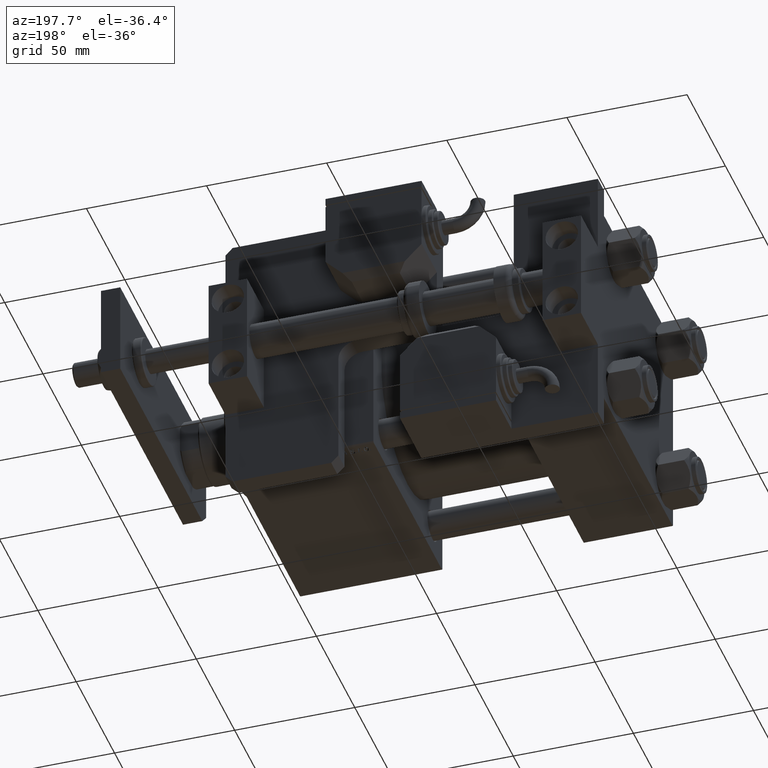
[diagram: clean part render]
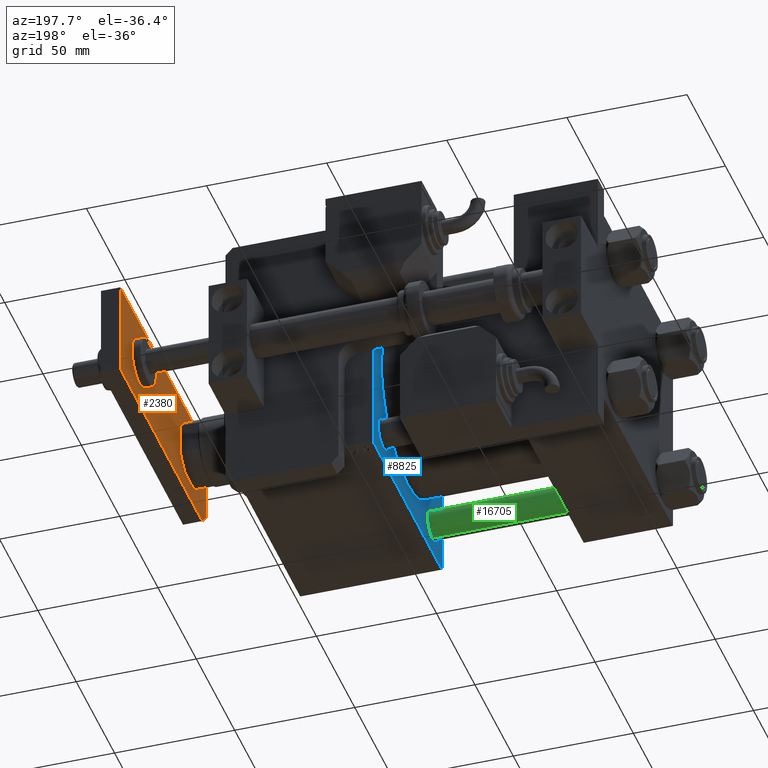
[diagram: same view with three faces highlighted in distinct colors, each labeled with its STEP entity id]
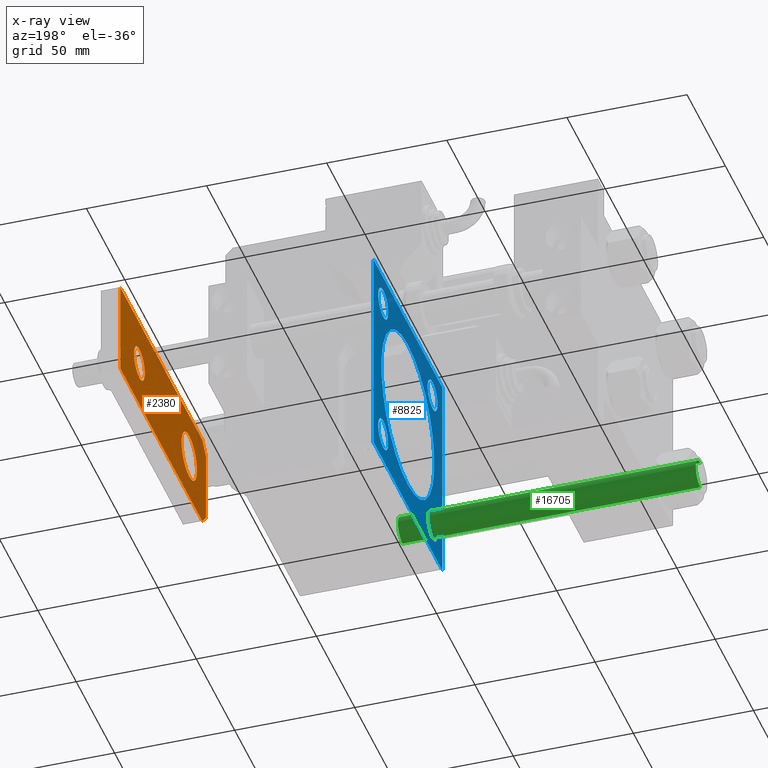
[diagram: x-ray of the same camera — body ghosted, the three highlighted faces saturated]
A machine part, auxiliary view with three faces highlighted in distinct colors.
The next image is the same camera in x-ray (body ghosted, the three faces saturated) — at least one of them is partly hidden behind the body in this view.
Their STEP definitions:

[orange] entity #2380 — the highlighted planar face has unit normal (1, 0, -0).
#154 = CARTESIAN_POINT ( 'NONE',  ( 7.000000000000004441, 87.00000000000000000, 0.000000000000000000 ) ) ;
#2354 = ORIENTED_EDGE ( 'NONE', *, *, #5087, .F. ) ;
#2380 = ADVANCED_FACE ( 'NONE', ( #11979, #4319, #34327 ), #42223, .F. ) ;
#2828 = VECTOR ( 'NONE', #36182, 1000.000000000000000 ) ;
#2831 = VECTOR ( 'NONE', #12342, 1000.000000000000000 ) ;
#3232 = CARTESIAN_POINT ( 'NONE',  ( 10.00000000000000178, 21.99999999999999289, 0.000000000000000000 ) ) ;
#3482 = DIRECTION ( 'NONE',  ( -0.000000000000000000, 0.000000000000000000, 1.000000000000000000 ) ) ;
#4152 = EDGE_CURVE ( 'NONE', #22876, #24029, #31539, .T. ) ;
#4319 = FACE_BOUND ( 'NONE', #4669, .T. ) ;
#4669 = EDGE_LOOP ( 'NONE', ( #41774, #9594 ) ) ;
#5087 = EDGE_CURVE ( 'NONE', #33819, #53638, #9982, .T. ) ;
#5641 = ORIENTED_EDGE ( 'NONE', *, *, #24046, .F. ) ;
#6178 = LINE ( 'NONE', #19204, #2828 ) ;
#6569 = CARTESIAN_POINT ( 'NONE',  ( -2.000174246416480903E-16, 87.00000000000000000, 0.000000000000000000 ) ) ;
#6760 = VERTEX_POINT ( 'NONE', #3232 ) ;
#7106 = VECTOR ( 'NONE', #31763, 1000.000000000000000 ) ;
#7269 = VECTOR ( 'NONE', #54773, 1000.000000000000000 ) ;
#7279 = LINE ( 'NONE', #33297, #7269 ) ;
#7653 = CARTESIAN_POINT ( 'NONE',  ( 0.000000000000000000, 21.99999999999999289, 0.000000000000000000 ) ) ;
#9589 = EDGE_CURVE ( 'NONE', #15894, #33819, #7279, .T. ) ;
#9594 = ORIENTED_EDGE ( 'NONE', *, *, #49016, .T. ) ;
#9982 = LINE ( 'NONE', #26957, #7106 ) ;
#11979 = FACE_OUTER_BOUND ( 'NONE', #29277, .T. ) ;
#12342 = DIRECTION ( 'NONE',  ( -0.7071067811865465735, 0.7071067811865485719, -0.000000000000000000 ) ) ;
#14229 = CARTESIAN_POINT ( 'NONE',  ( -20.00000000000001421, 5.000000000000018652, 0.000000000000000000 ) ) ;
#15236 = EDGE_LOOP ( 'NONE', ( #20978, #34449 ) ) ;
#15863 = DIRECTION ( 'NONE',  ( 1.000000000000000000, 0.000000000000000000, 0.000000000000000000 ) ) ;
#15894 = VERTEX_POINT ( 'NONE', #32794 ) ;
#17278 = AXIS2_PLACEMENT_3D ( 'NONE', #6569, #31762, #48986 ) ;
#18432 = CIRCLE ( 'NONE', #31101, 7.000000000000004441 ) ;
#19204 = CARTESIAN_POINT ( 'NONE',  ( -20.00000000000000355, 112.0000000000000000, 0.000000000000000000 ) ) ;
#20231 = DIRECTION ( 'NONE',  ( 1.000000000000000000, 0.000000000000000000, 0.000000000000000000 ) ) ;
#20978 = ORIENTED_EDGE ( 'NONE', *, *, #41965, .T. ) ;
#22219 = EDGE_CURVE ( 'NONE', #26323, #47387, #41624, .T. ) ;
#22836 = CARTESIAN_POINT ( 'NONE',  ( 0.000000000000000000, 21.99999999999999289, 0.000000000000000000 ) ) ;
#22876 = VERTEX_POINT ( 'NONE', #34974 ) ;
#23168 = CARTESIAN_POINT ( 'NONE',  ( 15.00000000000001066, 0.000000000000000000, 0.000000000000000000 ) ) ;
#24029 = VERTEX_POINT ( 'NONE', #23168 ) ;
#24046 = EDGE_CURVE ( 'NONE', #53638, #55513, #6178, .T. ) ;
#26233 = CIRCLE ( 'NONE', #33445, 10.00000000000000178 ) ;
#26323 = VERTEX_POINT ( 'NONE', #44239 ) ;
#26643 = DIRECTION ( 'NONE',  ( -0.7071067811865485719, -0.7071067811865465735, -0.000000000000000000 ) ) ;
#26917 = CARTESIAN_POINT ( 'NONE',  ( 20.00000000000001421, 4.999999999999990230, 0.000000000000000000 ) ) ;
#26957 = CARTESIAN_POINT ( 'NONE',  ( 19.99999999999999645, 112.0000000000000000, 0.000000000000000000 ) ) ;
#27517 = CARTESIAN_POINT ( 'NONE',  ( -10.00000000000000178, 21.99999999999999289, 0.000000000000000000 ) ) ;
#29277 = EDGE_LOOP ( 'NONE', ( #34690, #42115, #5641, #2354, #49013, #44860 ) ) ;
#29592 = LINE ( 'NONE', #33837, #2831 ) ;
#30214 = DIRECTION ( 'NONE',  ( 0.000000000000000000, 0.000000000000000000, 1.000000000000000000 ) ) ;
#31101 = AXIS2_PLACEMENT_3D ( 'NONE', #38038, #33510, #20231 ) ;
#31457 = VECTOR ( 'NONE', #31821, 1000.000000000000000 ) ;
#31539 = LINE ( 'NONE', #48481, #31457 ) ;
#31762 = DIRECTION ( 'NONE',  ( 0.000000000000000000, 0.000000000000000000, 1.000000000000000000 ) ) ;
#31763 = DIRECTION ( 'NONE',  ( -1.000000000000000000, 0.000000000000000000, 0.000000000000000000 ) ) ;
#31821 = DIRECTION ( 'NONE',  ( 1.000000000000000000, 0.000000000000000000, 0.000000000000000000 ) ) ;
#31952 = VERTEX_POINT ( 'NONE', #27517 ) ;
#32053 = CARTESIAN_POINT ( 'NONE',  ( -20.00000000000000355, 112.0000000000000000, 0.000000000000000000 ) ) ;
#32429 = AXIS2_PLACEMENT_3D ( 'NONE', #33758, #3482, #38281 ) ;
#32794 = CARTESIAN_POINT ( 'NONE',  ( 20.00000000000001421, 4.999999999999989342, 0.000000000000000000 ) ) ;
#33297 = CARTESIAN_POINT ( 'NONE',  ( 20.00000000000001421, 0.000000000000000000, 0.000000000000000000 ) ) ;
#33445 = AXIS2_PLACEMENT_3D ( 'NONE', #22836, #30214, #39237 ) ;
#33510 = DIRECTION ( 'NONE',  ( 0.000000000000000000, 0.000000000000000000, 1.000000000000000000 ) ) ;
#33758 = CARTESIAN_POINT ( 'NONE',  ( 0.000000000000000000, 0.000000000000000000, 0.000000000000000000 ) ) ;
#33819 = VERTEX_POINT ( 'NONE', #53127 ) ;
#33837 = CARTESIAN_POINT ( 'NONE',  ( -15.00000000000001066, 0.000000000000000000, 0.000000000000000000 ) ) ;
#33844 = CIRCLE ( 'NONE', #55496, 10.00000000000000178 ) ;
#34327 = FACE_BOUND ( 'NONE', #15236, .T. ) ;
#34449 = ORIENTED_EDGE ( 'NONE', *, *, #54789, .T. ) ;
#34690 = ORIENTED_EDGE ( 'NONE', *, *, #4152, .F. ) ;
#34974 = CARTESIAN_POINT ( 'NONE',  ( -15.00000000000001066, 0.000000000000000000, 0.000000000000000000 ) ) ;
#36182 = DIRECTION ( 'NONE',  ( -9.293161478447180511E-17, -1.000000000000000000, 0.000000000000000000 ) ) ;
#38038 = CARTESIAN_POINT ( 'NONE',  ( -2.000174246416480903E-16, 87.00000000000000000, 0.000000000000000000 ) ) ;
#38281 = DIRECTION ( 'NONE',  ( 1.000000000000000000, 0.000000000000000000, 0.000000000000000000 ) ) ;
#39093 = LINE ( 'NONE', #26917, #51642 ) ;
#39237 = DIRECTION ( 'NONE',  ( 1.000000000000000000, 0.000000000000000000, 0.000000000000000000 ) ) ;
#41624 = CIRCLE ( 'NONE', #17278, 7.000000000000004441 ) ;
#41774 = ORIENTED_EDGE ( 'NONE', *, *, #22219, .T. ) ;
#41965 = EDGE_CURVE ( 'NONE', #31952, #6760, #26233, .T. ) ;
#42115 = ORIENTED_EDGE ( 'NONE', *, *, #43125, .T. ) ;
#42223 = PLANE ( 'NONE',  #32429 ) ;
#43125 = EDGE_CURVE ( 'NONE', #22876, #55513, #29592, .T. ) ;
#44123 = EDGE_CURVE ( 'NONE', #15894, #24029, #39093, .T. ) ;
#44239 = CARTESIAN_POINT ( 'NONE',  ( -7.000000000000004441, 87.00000000000000000, 0.000000000000000000 ) ) ;
#44860 = ORIENTED_EDGE ( 'NONE', *, *, #44123, .T. ) ;
#47387 = VERTEX_POINT ( 'NONE', #154 ) ;
#48481 = CARTESIAN_POINT ( 'NONE',  ( -20.00000000000001421, 0.000000000000000000, 0.000000000000000000 ) ) ;
#48986 = DIRECTION ( 'NONE',  ( 1.000000000000000000, 0.000000000000000000, 0.000000000000000000 ) ) ;
#49013 = ORIENTED_EDGE ( 'NONE', *, *, #9589, .F. ) ;
#49016 = EDGE_CURVE ( 'NONE', #47387, #26323, #18432, .T. ) ;
#51642 = VECTOR ( 'NONE', #26643, 1000.000000000000000 ) ;
#53127 = CARTESIAN_POINT ( 'NONE',  ( 19.99999999999999645, 112.0000000000000000, 0.000000000000000000 ) ) ;
#53638 = VERTEX_POINT ( 'NONE', #32053 ) ;
#54589 = DIRECTION ( 'NONE',  ( 0.000000000000000000, 0.000000000000000000, 1.000000000000000000 ) ) ;
#54773 = DIRECTION ( 'NONE',  ( -1.548860246407863583E-16, 1.000000000000000000, 0.000000000000000000 ) ) ;
#54789 = EDGE_CURVE ( 'NONE', #6760, #31952, #33844, .T. ) ;
#55496 = AXIS2_PLACEMENT_3D ( 'NONE', #7653, #54589, #15863 ) ;
#55513 = VERTEX_POINT ( 'NONE', #14229 ) ;

[blue] entity #8825 — the highlighted planar face has unit normal (-1, 0, 0).
#252 = DIRECTION ( 'NONE',  ( 0.000000000000000000, 0.000000000000000000, -1.000000000000000000 ) ) ;
#356 = VERTEX_POINT ( 'NONE', #16032 ) ;
#414 = ORIENTED_EDGE ( 'NONE', *, *, #51641, .T. ) ;
#779 = CARTESIAN_POINT ( 'NONE',  ( 96.00000000000000000, 32.14999999999999147, 25.64999999999998437 ) ) ;
#1247 = DIRECTION ( 'NONE',  ( 0.000000000000000000, 0.000000000000000000, 1.000000000000000000 ) ) ;
#1474 = VECTOR ( 'NONE', #32712, 1000.000000000000000 ) ;
#1688 = DIRECTION ( 'NONE',  ( 0.000000000000000000, 0.000000000000000000, 1.000000000000000000 ) ) ;
#1890 = CIRCLE ( 'NONE', #6423, 6.500000000000019540 ) ;
#2535 = DIRECTION ( 'NONE',  ( 1.000000000000000000, 0.000000000000000000, 0.000000000000000000 ) ) ;
#2788 = AXIS2_PLACEMENT_3D ( 'NONE', #43558, #30562, #47787 ) ;
#3099 = CARTESIAN_POINT ( 'NONE',  ( 96.00000000000000000, 32.14999999999999147, -38.65000000000001990 ) ) ;
#3269 = VERTEX_POINT ( 'NONE', #22159 ) ;
#3353 = DIRECTION ( 'NONE',  ( 0.000000000000000000, -1.000000000000000000, -1.541976423090495387E-16 ) ) ;
#3540 = ORIENTED_EDGE ( 'NONE', *, *, #42611, .T. ) ;
#4128 = DIRECTION ( 'NONE',  ( 0.000000000000000000, 0.000000000000000000, 1.000000000000000000 ) ) ;
#4375 = AXIS2_PLACEMENT_3D ( 'NONE', #44663, #31949, #40422 ) ;
#4453 = VECTOR ( 'NONE', #3353, 1000.000000000000000 ) ;
#4563 = CIRCLE ( 'NONE', #8216, 34.50000000000000000 ) ;
#5254 = CARTESIAN_POINT ( 'NONE',  ( 96.00000000000000000, 45.00000000000000000, 44.50000000000004263 ) ) ;
#5363 = DIRECTION ( 'NONE',  ( 1.000000000000000000, -0.000000000000000000, 0.000000000000000000 ) ) ;
#5433 = EDGE_CURVE ( 'NONE', #3269, #17139, #54970, .T. ) ;
#5750 = CARTESIAN_POINT ( 'NONE',  ( 96.00000000000000000, 32.14999999999999147, -25.64999999999997726 ) ) ;
#6423 = AXIS2_PLACEMENT_3D ( 'NONE', #45432, #41754, #49948 ) ;
#6814 = VERTEX_POINT ( 'NONE', #3099 ) ;
#6889 = EDGE_CURVE ( 'NONE', #10723, #18112, #13534, .T. ) ;
#7608 = LINE ( 'NONE', #42099, #4453 ) ;
#8216 = AXIS2_PLACEMENT_3D ( 'NONE', #42396, #20928, #38171 ) ;
#8226 = CARTESIAN_POINT ( 'NONE',  ( 96.00000000000000000, 0.000000000000000000, 0.000000000000000000 ) ) ;
#8394 = CARTESIAN_POINT ( 'NONE',  ( 96.00000000000000000, -32.14999999999997726, -32.15000000000000568 ) ) ;
#8501 = LINE ( 'NONE', #47492, #19429 ) ;
#8825 = ADVANCED_FACE ( 'NONE', ( #33387, #45820, #16431, #46378, #33116, #54594 ), #16146, .T. ) ;
#9259 = EDGE_CURVE ( 'NONE', #18112, #10723, #4563, .T. ) ;
#9296 = DIRECTION ( 'NONE',  ( 0.000000000000000000, -1.000000000000000000, -1.541976423090495387E-16 ) ) ;
#9611 = ORIENTED_EDGE ( 'NONE', *, *, #6889, .T. ) ;
#10723 = VERTEX_POINT ( 'NONE', #37208 ) ;
#11191 = ORIENTED_EDGE ( 'NONE', *, *, #15736, .T. ) ;
#11485 = VERTEX_POINT ( 'NONE', #5254 ) ;
#12827 = VERTEX_POINT ( 'NONE', #25169 ) ;
#12892 = ORIENTED_EDGE ( 'NONE', *, *, #15943, .F. ) ;
#13534 = CIRCLE ( 'NONE', #18064, 34.50000000000000000 ) ;
#14025 = DIRECTION ( 'NONE',  ( 1.000000000000000000, -0.000000000000000000, 0.000000000000000000 ) ) ;
#14195 = ORIENTED_EDGE ( 'NONE', *, *, #32126, .T. ) ;
#14653 = EDGE_CURVE ( 'NONE', #17139, #3269, #28771, .T. ) ;
#15198 = DIRECTION ( 'NONE',  ( -0.000000000000000000, -0.7071067811865474617, -0.7071067811865474617 ) ) ;
#15736 = EDGE_CURVE ( 'NONE', #28470, #20969, #51400, .T. ) ;
#15943 = EDGE_CURVE ( 'NONE', #42004, #12827, #7608, .T. ) ;
#16025 = ORIENTED_EDGE ( 'NONE', *, *, #30728, .T. ) ;
#16032 = CARTESIAN_POINT ( 'NONE',  ( 96.00000000000000000, -45.00000000000000000, -44.50000000000002842 ) ) ;
#16146 = PLANE ( 'NONE',  #29817 ) ;
#16407 = DIRECTION ( 'NONE',  ( 0.000000000000000000, -0.7071067811865474617, 0.7071067811865474617 ) ) ;
#16431 = FACE_BOUND ( 'NONE', #31724, .T. ) ;
#17139 = VERTEX_POINT ( 'NONE', #779 ) ;
#17196 = CARTESIAN_POINT ( 'NONE',  ( 96.00000000000000000, -2.602085213965210642E-15, 34.50000000000000000 ) ) ;
#18064 = AXIS2_PLACEMENT_3D ( 'NONE', #41282, #2535, #19810 ) ;
#18112 = VERTEX_POINT ( 'NONE', #17196 ) ;
#19362 = DIRECTION ( 'NONE',  ( 1.000000000000000000, -0.000000000000000000, 0.000000000000000000 ) ) ;
#19429 = VECTOR ( 'NONE', #252, 1000.000000000000000 ) ;
#19810 = DIRECTION ( 'NONE',  ( 0.000000000000000000, 0.000000000000000000, -1.000000000000000000 ) ) ;
#20928 = DIRECTION ( 'NONE',  ( 1.000000000000000000, 0.000000000000000000, 0.000000000000000000 ) ) ;
#20969 = VERTEX_POINT ( 'NONE', #32100 ) ;
#21187 = ORIENTED_EDGE ( 'NONE', *, *, #38395, .T. ) ;
#21641 = ORIENTED_EDGE ( 'NONE', *, *, #54014, .F. ) ;
#22101 = VECTOR ( 'NONE', #16407, 1000.000000000000114 ) ;
#22159 = CARTESIAN_POINT ( 'NONE',  ( 96.00000000000000000, 32.14999999999999147, 38.65000000000001279 ) ) ;
#22758 = ORIENTED_EDGE ( 'NONE', *, *, #14653, .T. ) ;
#23719 = AXIS2_PLACEMENT_3D ( 'NONE', #31527, #19362, #1247 ) ;
#24529 = CARTESIAN_POINT ( 'NONE',  ( 96.00000000000000000, 44.74999999999999289, -44.74999999999999289 ) ) ;
#24799 = CIRCLE ( 'NONE', #37431, 6.500000000000019540 ) ;
#24809 = LINE ( 'NONE', #24529, #30590 ) ;
#25169 = CARTESIAN_POINT ( 'NONE',  ( 96.00000000000000000, -44.50000000000000000, 45.00000000000000000 ) ) ;
#25407 = VERTEX_POINT ( 'NONE', #31519 ) ;
#25650 = DIRECTION ( 'NONE',  ( 1.000000000000000000, -0.000000000000000000, 0.000000000000000000 ) ) ;
#25984 = EDGE_LOOP ( 'NONE', ( #11191, #43761 ) ) ;
#26693 = CIRCLE ( 'NONE', #47432, 6.500000000000019540 ) ;
#26795 = CARTESIAN_POINT ( 'NONE',  ( 96.00000000000000000, 44.50000000000002842, 45.00000000000001421 ) ) ;
#27211 = ORIENTED_EDGE ( 'NONE', *, *, #5433, .T. ) ;
#27231 = EDGE_LOOP ( 'NONE', ( #16025, #51094 ) ) ;
#27414 = VECTOR ( 'NONE', #9296, 1000.000000000000000 ) ;
#27481 = EDGE_LOOP ( 'NONE', ( #14195, #33536, #21641, #43215, #12892, #414, #21187, #45708 ) ) ;
#27919 = AXIS2_PLACEMENT_3D ( 'NONE', #44106, #5363, #40712 ) ;
#27929 = CARTESIAN_POINT ( 'NONE',  ( 96.00000000000000000, -44.75000000000001421, 44.75000000000001421 ) ) ;
#28177 = EDGE_LOOP ( 'NONE', ( #27211, #22758 ) ) ;
#28470 = VERTEX_POINT ( 'NONE', #28841 ) ;
#28771 = CIRCLE ( 'NONE', #4375, 6.500000000000012434 ) ;
#28841 = CARTESIAN_POINT ( 'NONE',  ( 96.00000000000000000, -32.14999999999997726, 38.65000000000002700 ) ) ;
#29473 = CARTESIAN_POINT ( 'NONE',  ( 96.00000000000000000, 45.00000000000000000, -44.49999999999995737 ) ) ;
#29817 = AXIS2_PLACEMENT_3D ( 'NONE', #8226, #55419, #37356 ) ;
#30562 = DIRECTION ( 'NONE',  ( 1.000000000000000000, -0.000000000000000000, 0.000000000000000000 ) ) ;
#30590 = VECTOR ( 'NONE', #15198, 1000.000000000000114 ) ;
#30614 = AXIS2_PLACEMENT_3D ( 'NONE', #52894, #53446, #1688 ) ;
#30728 = EDGE_CURVE ( 'NONE', #49720, #54382, #24799, .T. ) ;
#31167 = ORIENTED_EDGE ( 'NONE', *, *, #55170, .T. ) ;
#31519 = CARTESIAN_POINT ( 'NONE',  ( 96.00000000000000000, -45.00000000000000000, 44.50000000000002842 ) ) ;
#31527 = CARTESIAN_POINT ( 'NONE',  ( 96.00000000000000000, -32.14999999999997726, -32.15000000000000568 ) ) ;
#31724 = EDGE_LOOP ( 'NONE', ( #31167, #3540 ) ) ;
#31949 = DIRECTION ( 'NONE',  ( 1.000000000000000000, -0.000000000000000000, 0.000000000000000000 ) ) ;
#32100 = CARTESIAN_POINT ( 'NONE',  ( 96.00000000000000000, -32.14999999999997726, 25.64999999999998437 ) ) ;
#32126 = EDGE_CURVE ( 'NONE', #47242, #44432, #39003, .T. ) ;
#32133 = CARTESIAN_POINT ( 'NONE',  ( 96.00000000000000000, -32.14999999999997726, -38.65000000000003411 ) ) ;
#32261 = DIRECTION ( 'NONE',  ( 0.000000000000000000, 0.7071067811865474617, -0.7071067811865474617 ) ) ;
#32712 = DIRECTION ( 'NONE',  ( 0.000000000000000000, 0.000000000000000000, -1.000000000000000000 ) ) ;
#33116 = FACE_BOUND ( 'NONE', #47356, .T. ) ;
#33387 = FACE_BOUND ( 'NONE', #25984, .T. ) ;
#33536 = ORIENTED_EDGE ( 'NONE', *, *, #53135, .T. ) ;
#36131 = ORIENTED_EDGE ( 'NONE', *, *, #9259, .T. ) ;
#36518 = LINE ( 'NONE', #53737, #53729 ) ;
#37208 = CARTESIAN_POINT ( 'NONE',  ( 96.00000000000000000, 1.622946243093158675E-15, -34.50000000000000000 ) ) ;
#37356 = DIRECTION ( 'NONE',  ( -0.000000000000000000, 0.000000000000000000, 1.000000000000000000 ) ) ;
#37431 = AXIS2_PLACEMENT_3D ( 'NONE', #8394, #25650, #4128 ) ;
#38171 = DIRECTION ( 'NONE',  ( 0.000000000000000000, 0.000000000000000000, -1.000000000000000000 ) ) ;
#38352 = LINE ( 'NONE', #45696, #1474 ) ;
#38395 = EDGE_CURVE ( 'NONE', #11485, #55724, #38352, .T. ) ;
#39003 = LINE ( 'NONE', #48016, #27414 ) ;
#40422 = DIRECTION ( 'NONE',  ( 0.000000000000000000, 0.000000000000000000, 1.000000000000000000 ) ) ;
#40712 = DIRECTION ( 'NONE',  ( 0.000000000000000000, 0.000000000000000000, 1.000000000000000000 ) ) ;
#40757 = EDGE_CURVE ( 'NONE', #55724, #47242, #24809, .T. ) ;
#41278 = LINE ( 'NONE', #55118, #22101 ) ;
#41282 = CARTESIAN_POINT ( 'NONE',  ( 96.00000000000000000, -2.602085213965210642E-15, 0.000000000000000000 ) ) ;
#41303 = CARTESIAN_POINT ( 'NONE',  ( 96.00000000000000000, -44.50000000000002842, -45.00000000000000000 ) ) ;
#41754 = DIRECTION ( 'NONE',  ( 1.000000000000000000, -0.000000000000000000, 0.000000000000000000 ) ) ;
#42004 = VERTEX_POINT ( 'NONE', #26795 ) ;
#42099 = CARTESIAN_POINT ( 'NONE',  ( 96.00000000000000000, 45.00000000000000000, 45.00000000000001421 ) ) ;
#42312 = CARTESIAN_POINT ( 'NONE',  ( 96.00000000000000000, 44.50000000000000000, -44.99999999999998579 ) ) ;
#42396 = CARTESIAN_POINT ( 'NONE',  ( 96.00000000000000000, -2.602085213965210642E-15, 0.000000000000000000 ) ) ;
#42611 = EDGE_CURVE ( 'NONE', #6814, #54712, #50670, .T. ) ;
#43215 = ORIENTED_EDGE ( 'NONE', *, *, #47176, .T. ) ;
#43558 = CARTESIAN_POINT ( 'NONE',  ( 96.00000000000000000, 32.14999999999999147, -32.14999999999999858 ) ) ;
#43761 = ORIENTED_EDGE ( 'NONE', *, *, #43943, .T. ) ;
#43943 = EDGE_CURVE ( 'NONE', #20969, #28470, #1890, .T. ) ;
#44106 = CARTESIAN_POINT ( 'NONE',  ( 96.00000000000000000, -32.14999999999997726, 32.15000000000000568 ) ) ;
#44432 = VERTEX_POINT ( 'NONE', #41303 ) ;
#44663 = CARTESIAN_POINT ( 'NONE',  ( 96.00000000000000000, 32.14999999999999147, 32.14999999999999858 ) ) ;
#45432 = CARTESIAN_POINT ( 'NONE',  ( 96.00000000000000000, -32.14999999999997726, 32.15000000000000568 ) ) ;
#45696 = CARTESIAN_POINT ( 'NONE',  ( 96.00000000000000000, 45.00000000000000000, 45.00000000000001421 ) ) ;
#45708 = ORIENTED_EDGE ( 'NONE', *, *, #40757, .T. ) ;
#45820 = FACE_BOUND ( 'NONE', #28177, .T. ) ;
#46309 = EDGE_CURVE ( 'NONE', #54382, #49720, #48068, .T. ) ;
#46378 = FACE_BOUND ( 'NONE', #27231, .T. ) ;
#47176 = EDGE_CURVE ( 'NONE', #25407, #12827, #53366, .T. ) ;
#47242 = VERTEX_POINT ( 'NONE', #42312 ) ;
#47356 = EDGE_LOOP ( 'NONE', ( #36131, #9611 ) ) ;
#47432 = AXIS2_PLACEMENT_3D ( 'NONE', #52745, #14025, #48216 ) ;
#47492 = CARTESIAN_POINT ( 'NONE',  ( 96.00000000000000000, -45.00000000000000000, 45.00000000000000000 ) ) ;
#47787 = DIRECTION ( 'NONE',  ( 0.000000000000000000, 0.000000000000000000, 1.000000000000000000 ) ) ;
#48016 = CARTESIAN_POINT ( 'NONE',  ( 96.00000000000000000, 45.00000000000000000, -44.99999999999998579 ) ) ;
#48068 = CIRCLE ( 'NONE', #23719, 6.500000000000019540 ) ;
#48216 = DIRECTION ( 'NONE',  ( 0.000000000000000000, 0.000000000000000000, 1.000000000000000000 ) ) ;
#48283 = CARTESIAN_POINT ( 'NONE',  ( 96.00000000000000000, -32.14999999999997726, -25.64999999999998437 ) ) ;
#48840 = DIRECTION ( 'NONE',  ( -0.000000000000000000, 0.7071067811865474617, 0.7071067811865474617 ) ) ;
#49720 = VERTEX_POINT ( 'NONE', #48283 ) ;
#49948 = DIRECTION ( 'NONE',  ( 0.000000000000000000, 0.000000000000000000, 1.000000000000000000 ) ) ;
#50670 = CIRCLE ( 'NONE', #2788, 6.500000000000019540 ) ;
#51094 = ORIENTED_EDGE ( 'NONE', *, *, #46309, .T. ) ;
#51400 = CIRCLE ( 'NONE', #27919, 6.500000000000019540 ) ;
#51641 = EDGE_CURVE ( 'NONE', #42004, #11485, #36518, .T. ) ;
#52634 = VECTOR ( 'NONE', #48840, 1000.000000000000114 ) ;
#52745 = CARTESIAN_POINT ( 'NONE',  ( 96.00000000000000000, 32.14999999999999147, -32.14999999999999858 ) ) ;
#52894 = CARTESIAN_POINT ( 'NONE',  ( 96.00000000000000000, 32.14999999999999147, 32.14999999999999858 ) ) ;
#53135 = EDGE_CURVE ( 'NONE', #44432, #356, #41278, .T. ) ;
#53366 = LINE ( 'NONE', #27929, #52634 ) ;
#53446 = DIRECTION ( 'NONE',  ( 1.000000000000000000, -0.000000000000000000, 0.000000000000000000 ) ) ;
#53729 = VECTOR ( 'NONE', #32261, 1000.000000000000114 ) ;
#53737 = CARTESIAN_POINT ( 'NONE',  ( 96.00000000000000000, 44.75000000000001421, 44.75000000000001421 ) ) ;
#54014 = EDGE_CURVE ( 'NONE', #25407, #356, #8501, .T. ) ;
#54382 = VERTEX_POINT ( 'NONE', #32133 ) ;
#54594 = FACE_OUTER_BOUND ( 'NONE', #27481, .T. ) ;
#54712 = VERTEX_POINT ( 'NONE', #5750 ) ;
#54970 = CIRCLE ( 'NONE', #30614, 6.500000000000012434 ) ;
#55118 = CARTESIAN_POINT ( 'NONE',  ( 96.00000000000000000, -44.75000000000002132, -44.75000000000002132 ) ) ;
#55170 = EDGE_CURVE ( 'NONE', #54712, #6814, #26693, .T. ) ;
#55419 = DIRECTION ( 'NONE',  ( -1.000000000000000000, 0.000000000000000000, -0.000000000000000000 ) ) ;
#55724 = VERTEX_POINT ( 'NONE', #29473 ) ;

[green] entity #16705 — the highlighted cylindrical surface (edge-blend (fillet) strip) has radius 6 mm, axis along (-1, 0, -0).
#24 = FACE_OUTER_BOUND ( 'NONE', #55869, .T. ) ;
#843 = AXIS2_PLACEMENT_3D ( 'NONE', #13604, #42742, #4279 ) ;
#1653 = CARTESIAN_POINT ( 'NONE',  ( 6.000000000000000888, 7.347880794884120722E-16, 125.0000000000000000 ) ) ;
#1706 = EDGE_CURVE ( 'NONE', #2646, #29583, #3688, .T. ) ;
#2053 = CIRCLE ( 'NONE', #25551, 6.000000000000000888 ) ;
#2646 = VERTEX_POINT ( 'NONE', #3140 ) ;
#3140 = CARTESIAN_POINT ( 'NONE',  ( -6.000000000000000888, 0.000000000000000000, 124.5000000000000000 ) ) ;
#3688 = LINE ( 'NONE', #11343, #34226 ) ;
#4193 = CIRCLE ( 'NONE', #47545, 6.000000000000000888 ) ;
#4279 = DIRECTION ( 'NONE',  ( -1.000000000000000000, 0.000000000000000000, 0.000000000000000000 ) ) ;
#4364 = VERTEX_POINT ( 'NONE', #25866 ) ;
#11343 = CARTESIAN_POINT ( 'NONE',  ( -6.000000000000000888, 0.000000000000000000, 125.0000000000000000 ) ) ;
#13604 = CARTESIAN_POINT ( 'NONE',  ( 0.000000000000000000, 0.000000000000000000, 125.0000000000000000 ) ) ;
#14557 = CARTESIAN_POINT ( 'NONE',  ( 0.000000000000000000, 0.000000000000000000, 0.4999999999999865663 ) ) ;
#15747 = ORIENTED_EDGE ( 'NONE', *, *, #46467, .T. ) ;
#16705 = ADVANCED_FACE ( 'NONE', ( #24 ), #52052, .T. ) ;
#18942 = DIRECTION ( 'NONE',  ( -0.000000000000000000, -0.000000000000000000, -1.000000000000000000 ) ) ;
#19916 = DIRECTION ( 'NONE',  ( 0.000000000000000000, 0.000000000000000000, -1.000000000000000000 ) ) ;
#23992 = CARTESIAN_POINT ( 'NONE',  ( -6.000000000000000888, 0.000000000000000000, 0.4999999999999865663 ) ) ;
#25551 = AXIS2_PLACEMENT_3D ( 'NONE', #32649, #19916, #49870 ) ;
#25866 = CARTESIAN_POINT ( 'NONE',  ( 6.000000000000000888, 7.347880794884120722E-16, 124.5000000000000000 ) ) ;
#28127 = DIRECTION ( 'NONE',  ( -0.000000000000000000, -0.000000000000000000, 1.000000000000000000 ) ) ;
#29583 = VERTEX_POINT ( 'NONE', #23992 ) ;
#32649 = CARTESIAN_POINT ( 'NONE',  ( 0.000000000000000000, 0.000000000000000000, 124.5000000000000000 ) ) ;
#34226 = VECTOR ( 'NONE', #41868, 1000.000000000000000 ) ;
#37297 = VERTEX_POINT ( 'NONE', #43418 ) ;
#37685 = ORIENTED_EDGE ( 'NONE', *, *, #38634, .T. ) ;
#38634 = EDGE_CURVE ( 'NONE', #29583, #37297, #4193, .T. ) ;
#40345 = ORIENTED_EDGE ( 'NONE', *, *, #45655, .F. ) ;
#41868 = DIRECTION ( 'NONE',  ( -0.000000000000000000, -0.000000000000000000, -1.000000000000000000 ) ) ;
#42742 = DIRECTION ( 'NONE',  ( -0.000000000000000000, -0.000000000000000000, -1.000000000000000000 ) ) ;
#43418 = CARTESIAN_POINT ( 'NONE',  ( 6.000000000000000888, 7.347880794884120722E-16, 0.4999999999999865663 ) ) ;
#44659 = LINE ( 'NONE', #1653, #48033 ) ;
#45347 = DIRECTION ( 'NONE',  ( 1.000000000000000000, 0.000000000000000000, 0.000000000000000000 ) ) ;
#45655 = EDGE_CURVE ( 'NONE', #4364, #37297, #44659, .T. ) ;
#46467 = EDGE_CURVE ( 'NONE', #4364, #2646, #2053, .T. ) ;
#47545 = AXIS2_PLACEMENT_3D ( 'NONE', #14557, #28127, #45347 ) ;
#48033 = VECTOR ( 'NONE', #18942, 1000.000000000000000 ) ;
#49870 = DIRECTION ( 'NONE',  ( 1.000000000000000000, 0.000000000000000000, 0.000000000000000000 ) ) ;
#52052 = CYLINDRICAL_SURFACE ( 'NONE', #843, 6.000000000000000888 ) ;
#54406 = ORIENTED_EDGE ( 'NONE', *, *, #1706, .T. ) ;
#55869 = EDGE_LOOP ( 'NONE', ( #40345, #15747, #54406, #37685 ) ) ;